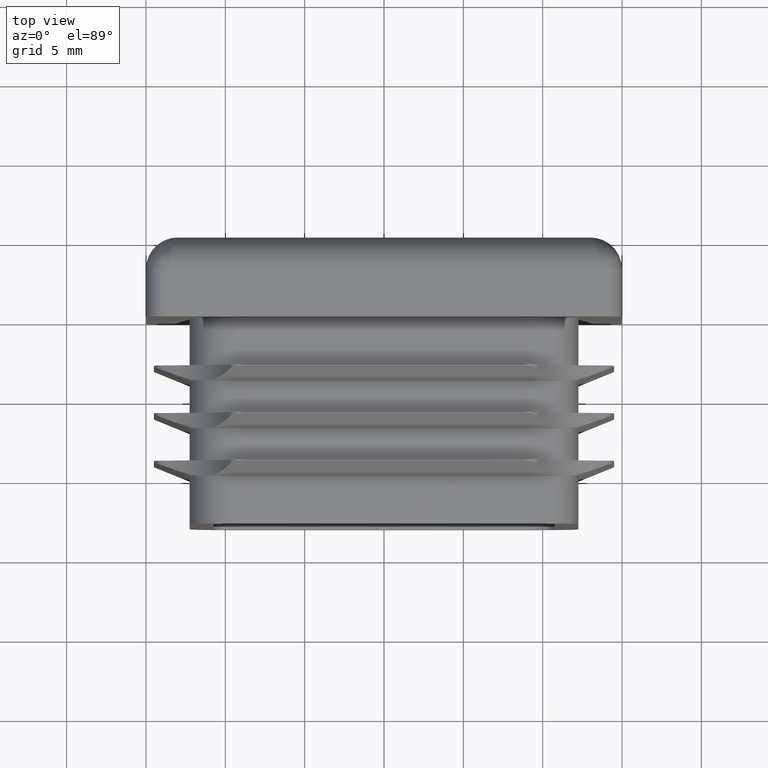
[diagram: clean part render]
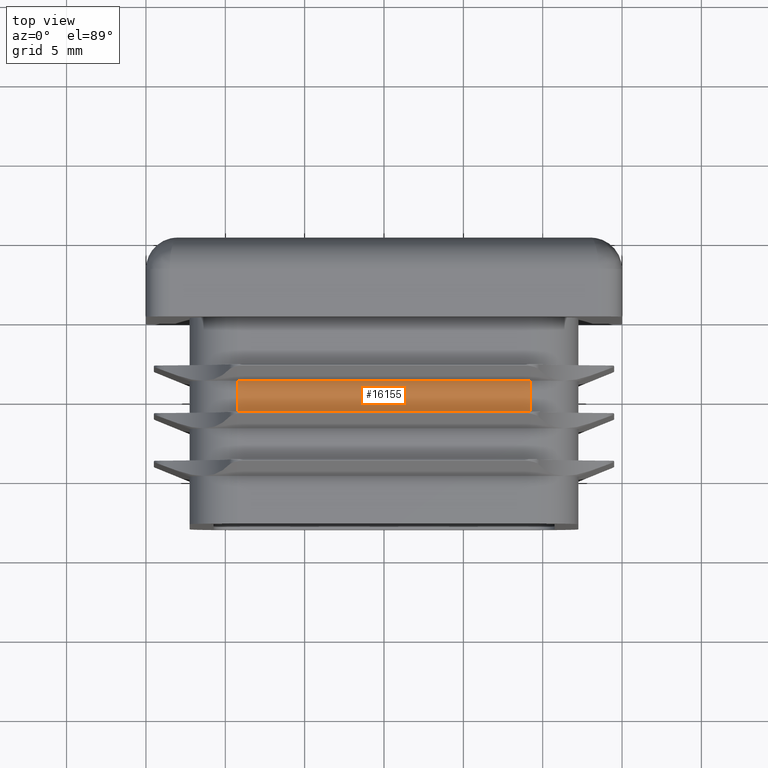
[diagram: same view with one face highlighted and labeled with its STEP entity id]
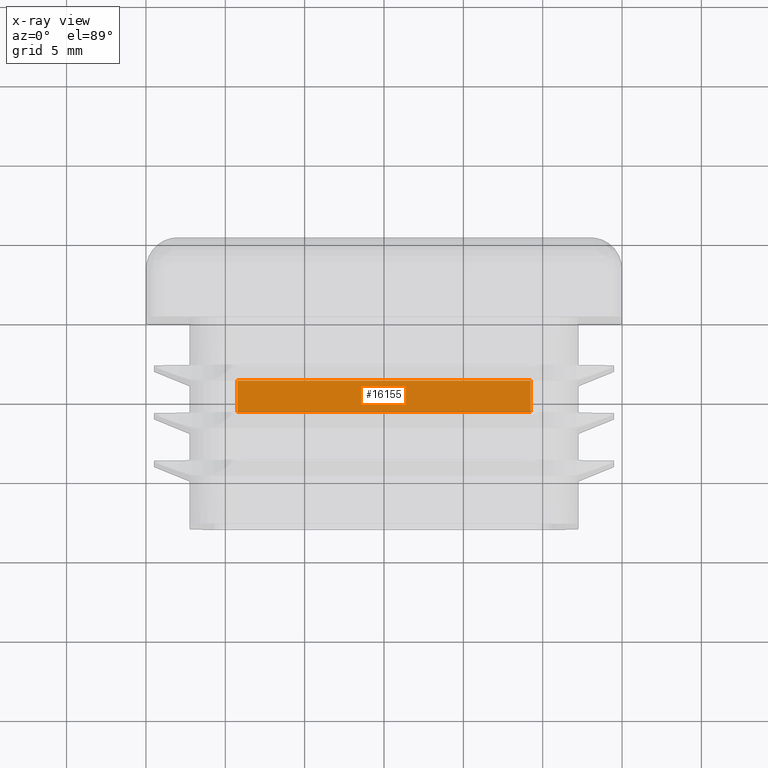
[diagram: x-ray of the same camera — body ghosted, the highlighted face saturated]
A machine part, top view. The second image highlights one B-rep face of the part: STEP entity #16155.
The next image is the same camera in x-ray: the body ghosted, the highlighted face saturated — about 0% of this face is hidden behind the body in this view.
In plain terms, the highlighted planar face has unit normal (0, 0, -1).
Its self-contained STEP definition (entity closure, byte-faithful):
#1128 = VERTEX_POINT ( 'NONE', #17827 ) ;
#2208 = DIRECTION ( 'NONE',  ( 0.000000000000000000, 0.000000000000000000, -1.000000000000000000 ) ) ;
#3377 = LINE ( 'NONE', #16219, #18240 ) ;
#3913 = DIRECTION ( 'NONE',  ( -1.000000000000000000, 0.000000000000000000, -0.000000000000000000 ) ) ;
#4102 = EDGE_LOOP ( 'NONE', ( #4369, #16180, #4571, #20350 ) ) ;
#4350 = CARTESIAN_POINT ( 'NONE',  ( -9.250000000000012434, -6.000000000000002665, 12.24999999999999645 ) ) ;
#4369 = ORIENTED_EDGE ( 'NONE', *, *, #8642, .T. ) ;
#4571 = ORIENTED_EDGE ( 'NONE', *, *, #17110, .F. ) ;
#4712 = CARTESIAN_POINT ( 'NONE',  ( 9.249999999999969802, -13.00000000000000000, 12.24999999999999645 ) ) ;
#4884 = LINE ( 'NONE', #16383, #13532 ) ;
#5228 = DIRECTION ( 'NONE',  ( -0.000000000000000000, 1.000000000000000000, -0.000000000000000000 ) ) ;
#7212 = CARTESIAN_POINT ( 'NONE',  ( -9.250000000000012434, -4.000000000000000000, 12.24999999999999467 ) ) ;
#8642 = EDGE_CURVE ( 'NONE', #10288, #17236, #4884, .T. ) ;
#9405 = DIRECTION ( 'NONE',  ( -0.000000000000000000, 1.000000000000000000, -0.000000000000000000 ) ) ;
#10071 = PLANE ( 'NONE',  #14094 ) ;
#10288 = VERTEX_POINT ( 'NONE', #4350 ) ;
#11579 = CARTESIAN_POINT ( 'NONE',  ( -9.250000000000012434, -4.000000000000001776, 12.24999999999999645 ) ) ;
#11752 = DIRECTION ( 'NONE',  ( 1.000000000000000000, 0.000000000000000000, 0.000000000000000000 ) ) ;
#12577 = FACE_OUTER_BOUND ( 'NONE', #4102, .T. ) ;
#13188 = DIRECTION ( 'NONE',  ( 1.000000000000000000, 0.000000000000000000, 0.000000000000000000 ) ) ;
#13218 = EDGE_CURVE ( 'NONE', #17236, #1128, #18810, .T. ) ;
#13532 = VECTOR ( 'NONE', #13188, 1000.000000000000000 ) ;
#14094 = AXIS2_PLACEMENT_3D ( 'NONE', #14830, #2208, #3913 ) ;
#14830 = CARTESIAN_POINT ( 'NONE',  ( -9.250000000000012434, -13.00000000000000000, 12.24999999999999645 ) ) ;
#15128 = CARTESIAN_POINT ( 'NONE',  ( 9.249999999999969802, -6.000000000000002665, 12.24999999999999645 ) ) ;
#16155 = ADVANCED_FACE ( 'NONE', ( #12577 ), #10071, .F. ) ;
#16180 = ORIENTED_EDGE ( 'NONE', *, *, #13218, .T. ) ;
#16219 = CARTESIAN_POINT ( 'NONE',  ( -9.250000000000012434, -13.00000000000000000, 12.24999999999999645 ) ) ;
#16338 = VECTOR ( 'NONE', #9405, 1000.000000000000000 ) ;
#16383 = CARTESIAN_POINT ( 'NONE',  ( -9.250000000000012434, -6.000000000000000888, 12.25000000000002665 ) ) ;
#16792 = VECTOR ( 'NONE', #11752, 1000.000000000000000 ) ;
#17110 = EDGE_CURVE ( 'NONE', #18634, #1128, #20463, .T. ) ;
#17236 = VERTEX_POINT ( 'NONE', #15128 ) ;
#17794 = EDGE_CURVE ( 'NONE', #10288, #18634, #3377, .T. ) ;
#17827 = CARTESIAN_POINT ( 'NONE',  ( 9.249999999999969802, -3.999999999999999112, 12.24999999999999645 ) ) ;
#18240 = VECTOR ( 'NONE', #5228, 1000.000000000000000 ) ;
#18634 = VERTEX_POINT ( 'NONE', #11579 ) ;
#18810 = LINE ( 'NONE', #4712, #16338 ) ;
#20350 = ORIENTED_EDGE ( 'NONE', *, *, #17794, .F. ) ;
#20463 = LINE ( 'NONE', #7212, #16792 ) ;